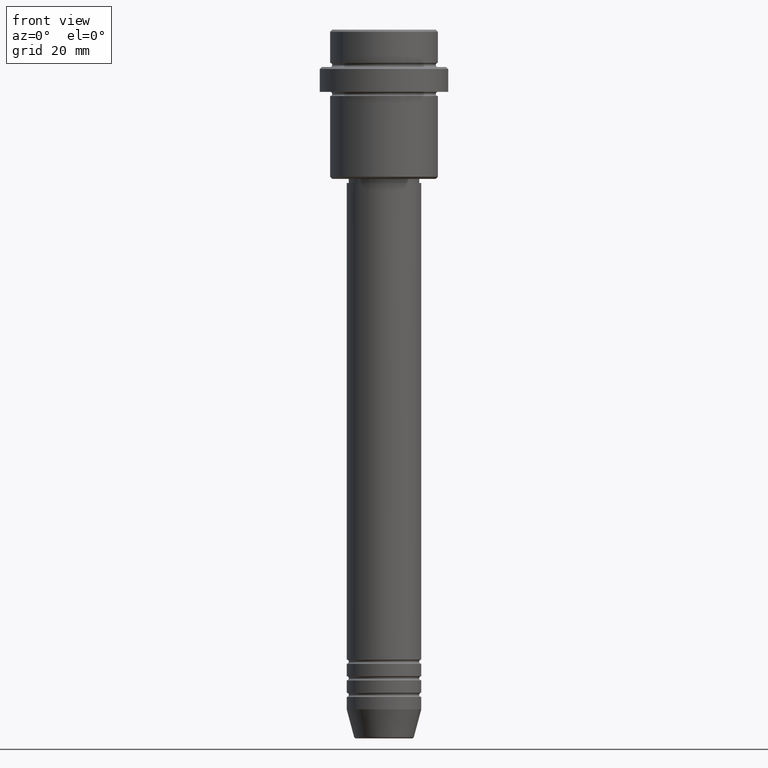
[diagram: clean part render]
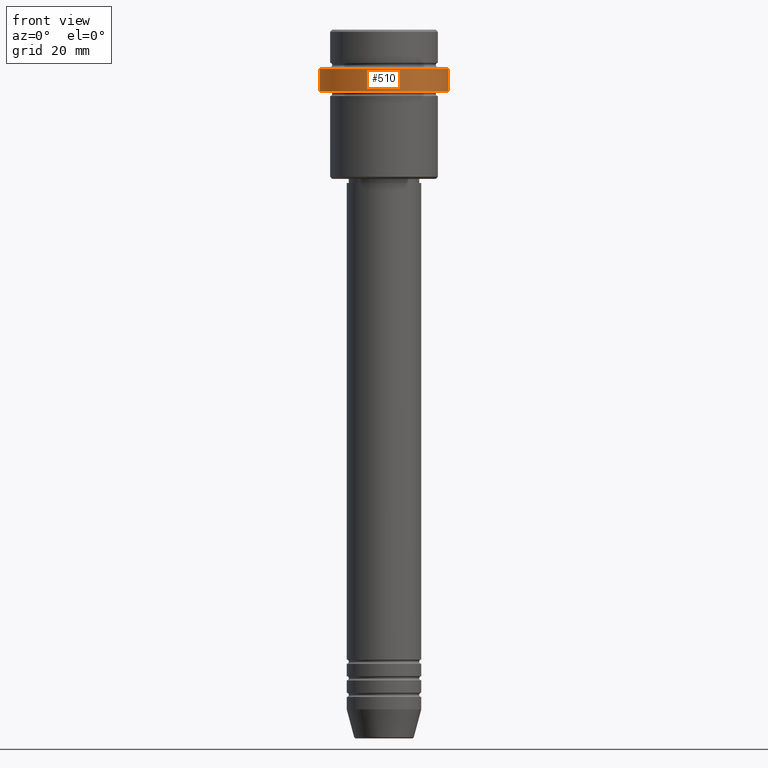
[diagram: same view with one face highlighted and labeled with its STEP entity id]
A machine part, front view. The second image highlights one B-rep face of the part: STEP entity #510.
In plain terms, the highlighted cylindrical surface (partial cylindrical patch) has radius 15.5 mm, axis along (-0, -0, 1).
Its self-contained STEP definition (entity closure, byte-faithful):
#5 = VECTOR ( 'NONE', #536, 1000.000000000000000 ) ;
#46 = DIRECTION ( 'NONE',  ( -0.000000000000000000, -0.000000000000000000, 1.000000000000000000 ) ) ;
#71 = VECTOR ( 'NONE', #1269, 1000.000000000000000 ) ;
#93 = ORIENTED_EDGE ( 'NONE', *, *, #1131, .T. ) ;
#156 = CARTESIAN_POINT ( 'NONE',  ( 0.000000000000000000, 0.000000000000000000, 0.000000000000000000 ) ) ;
#174 = ORIENTED_EDGE ( 'NONE', *, *, #710, .T. ) ;
#277 = CARTESIAN_POINT ( 'NONE',  ( 0.000000000000000000, 0.000000000000000000, -9.500000000000026645 ) ) ;
#279 = LINE ( 'NONE', #883, #5 ) ;
#304 = AXIS2_PLACEMENT_3D ( 'NONE', #156, #46, #380 ) ;
#317 = CARTESIAN_POINT ( 'NONE',  ( -15.50000000000000000, 1.898202538678397557E-15, -14.99999999999998757 ) ) ;
#377 = CIRCLE ( 'NONE', #1172, 15.50000000000000000 ) ;
#380 = DIRECTION ( 'NONE',  ( 1.000000000000000000, 0.000000000000000000, 0.000000000000000000 ) ) ;
#401 = AXIS2_PLACEMENT_3D ( 'NONE', #1283, #752, #635 ) ;
#413 = CARTESIAN_POINT ( 'NONE',  ( 15.50000000000000000, 0.000000000000000000, -14.99999999999998757 ) ) ;
#510 = ADVANCED_FACE ( 'NONE', ( #1348 ), #701, .T. ) ;
#515 = CARTESIAN_POINT ( 'NONE',  ( -15.50000000000000000, 1.898202538678397557E-15, 0.000000000000000000 ) ) ;
#536 = DIRECTION ( 'NONE',  ( -0.000000000000000000, -0.000000000000000000, 1.000000000000000000 ) ) ;
#612 = DIRECTION ( 'NONE',  ( 0.000000000000000000, 0.000000000000000000, -1.000000000000000000 ) ) ;
#635 = DIRECTION ( 'NONE',  ( 1.000000000000000000, 0.000000000000000000, 0.000000000000000000 ) ) ;
#645 = EDGE_CURVE ( 'NONE', #1253, #880, #735, .T. ) ;
#701 = CYLINDRICAL_SURFACE ( 'NONE', #304, 15.50000000000000000 ) ;
#710 = EDGE_CURVE ( 'NONE', #1248, #832, #279, .T. ) ;
#735 = LINE ( 'NONE', #515, #71 ) ;
#744 = CIRCLE ( 'NONE', #401, 15.50000000000000000 ) ;
#752 = DIRECTION ( 'NONE',  ( -0.000000000000000000, -0.000000000000000000, 1.000000000000000000 ) ) ;
#832 = VERTEX_POINT ( 'NONE', #860 ) ;
#841 = EDGE_LOOP ( 'NONE', ( #1356, #1309, #174, #93 ) ) ;
#860 = CARTESIAN_POINT ( 'NONE',  ( 15.50000000000000000, 0.000000000000000000, -9.500000000000026645 ) ) ;
#880 = VERTEX_POINT ( 'NONE', #1016 ) ;
#883 = CARTESIAN_POINT ( 'NONE',  ( 15.50000000000000000, 0.000000000000000000, 0.000000000000000000 ) ) ;
#1016 = CARTESIAN_POINT ( 'NONE',  ( -15.50000000000000000, 1.898202538678397557E-15, -9.500000000000026645 ) ) ;
#1039 = DIRECTION ( 'NONE',  ( 1.000000000000000000, 0.000000000000000000, 0.000000000000000000 ) ) ;
#1131 = EDGE_CURVE ( 'NONE', #832, #880, #377, .T. ) ;
#1172 = AXIS2_PLACEMENT_3D ( 'NONE', #277, #612, #1039 ) ;
#1248 = VERTEX_POINT ( 'NONE', #413 ) ;
#1253 = VERTEX_POINT ( 'NONE', #317 ) ;
#1269 = DIRECTION ( 'NONE',  ( -0.000000000000000000, -0.000000000000000000, 1.000000000000000000 ) ) ;
#1273 = EDGE_CURVE ( 'NONE', #1253, #1248, #744, .T. ) ;
#1283 = CARTESIAN_POINT ( 'NONE',  ( 0.000000000000000000, 0.000000000000000000, -14.99999999999998757 ) ) ;
#1309 = ORIENTED_EDGE ( 'NONE', *, *, #1273, .T. ) ;
#1348 = FACE_OUTER_BOUND ( 'NONE', #841, .T. ) ;
#1356 = ORIENTED_EDGE ( 'NONE', *, *, #645, .F. ) ;